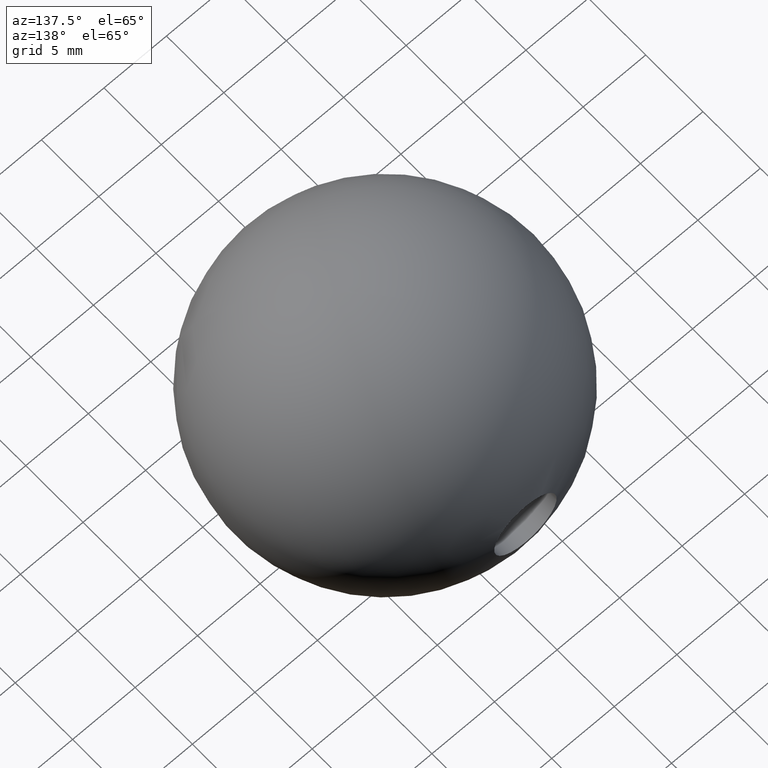
[diagram: clean part render]
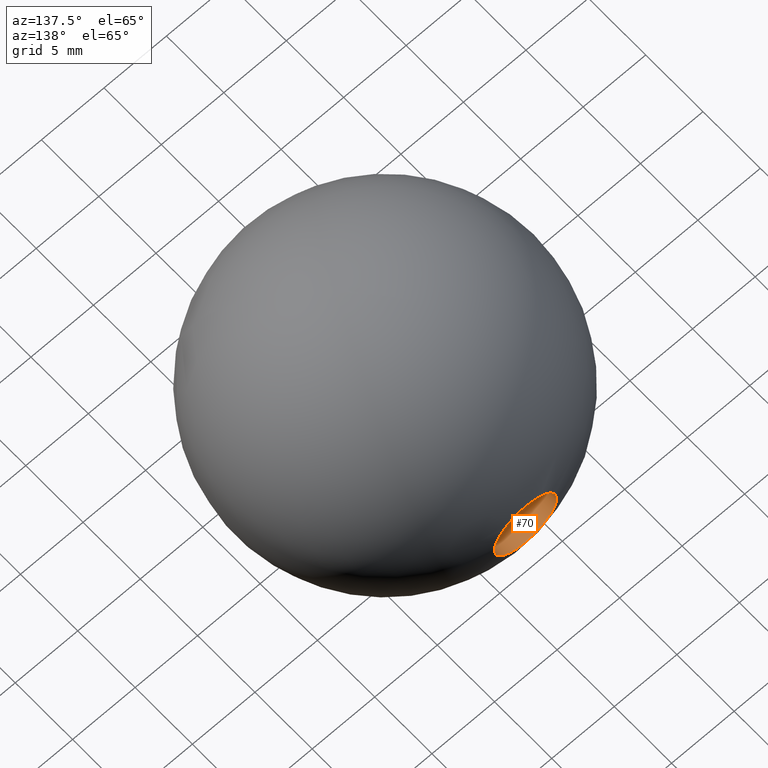
[diagram: same view with one face highlighted and labeled with its STEP entity id]
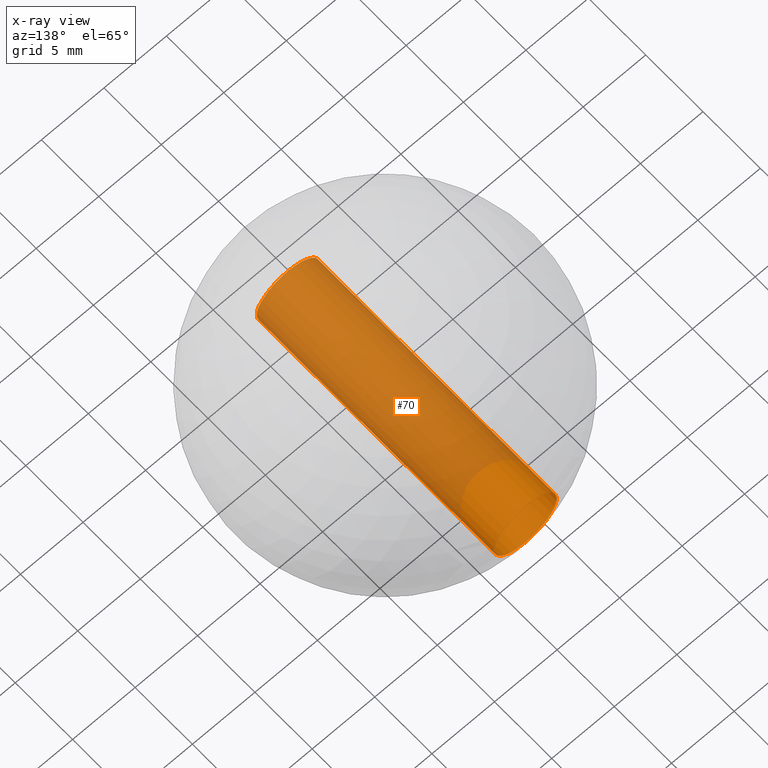
[diagram: x-ray of the same camera — body ghosted, the highlighted face saturated]
A machine part, auxiliary view. The second image highlights one B-rep face of the part: STEP entity #70.
The next image is the same camera in x-ray: the body ghosted, the highlighted face saturated — about 79% of this face is hidden behind the body in this view.
In plain terms, the highlighted cylindrical surface (bore or boss wall) has radius 2.5 mm, axis along (-0, 1, -0).
Its self-contained STEP definition (entity closure, byte-faithful):
#9 = CARTESIAN_POINT ( 'NONE',  ( 0.000000000000000000, 12.24744871391589207, -2.499999999999992895 ) ) ;
#12 = CARTESIAN_POINT ( 'NONE',  ( 0.000000000000000000, 12.24744871391589207, 0.000000000000000000 ) ) ;
#17 = FACE_OUTER_BOUND ( 'NONE', #123, .T. ) ;
#20 = CARTESIAN_POINT ( 'NONE',  ( 0.000000000000000000, -8.500000000000000000, 2.499999999999995559 ) ) ;
#22 = DIRECTION ( 'NONE',  ( 0.000000000000000000, 0.000000000000000000, -1.000000000000000000 ) ) ;
#28 = VERTEX_POINT ( 'NONE', #9 ) ;
#30 = EDGE_CURVE ( 'NONE', #28, #28, #40, .T. ) ;
#33 = VERTEX_POINT ( 'NONE', #20 ) ;
#40 = CIRCLE ( 'NONE', #128, 2.499999999999992895 ) ;
#50 = DIRECTION ( 'NONE',  ( -0.000000000000000000, 1.000000000000000000, -0.000000000000000000 ) ) ;
#54 = AXIS2_PLACEMENT_3D ( 'NONE', #89, #113, #135 ) ;
#65 = CARTESIAN_POINT ( 'NONE',  ( 0.000000000000000000, 12.50000000000000000, 0.000000000000000000 ) ) ;
#70 = ADVANCED_FACE ( 'NONE', ( #17, #80 ), #107, .F. ) ;
#80 = FACE_OUTER_BOUND ( 'NONE', #98, .T. ) ;
#84 = ORIENTED_EDGE ( 'NONE', *, *, #30, .T. ) ;
#87 = ORIENTED_EDGE ( 'NONE', *, *, #112, .F. ) ;
#89 = CARTESIAN_POINT ( 'NONE',  ( 0.000000000000000000, -8.500000000000000000, 0.000000000000000000 ) ) ;
#98 = EDGE_LOOP ( 'NONE', ( #87 ) ) ;
#99 = DIRECTION ( 'NONE',  ( -0.000000000000000000, 1.000000000000000000, -0.000000000000000000 ) ) ;
#107 = CYLINDRICAL_SURFACE ( 'NONE', #134, 2.499999999999992895 ) ;
#112 = EDGE_CURVE ( 'NONE', #33, #33, #122, .T. ) ;
#113 = DIRECTION ( 'NONE',  ( -0.000000000000000000, 1.000000000000000000, -0.000000000000000000 ) ) ;
#114 = DIRECTION ( 'NONE',  ( 0.000000000000000000, 0.000000000000000000, 1.000000000000000000 ) ) ;
#122 = CIRCLE ( 'NONE', #54, 2.499999999999995559 ) ;
#123 = EDGE_LOOP ( 'NONE', ( #84 ) ) ;
#128 = AXIS2_PLACEMENT_3D ( 'NONE', #12, #50, #22 ) ;
#134 = AXIS2_PLACEMENT_3D ( 'NONE', #65, #99, #114 ) ;
#135 = DIRECTION ( 'NONE',  ( 0.000000000000000000, 0.000000000000000000, 1.000000000000000000 ) ) ;